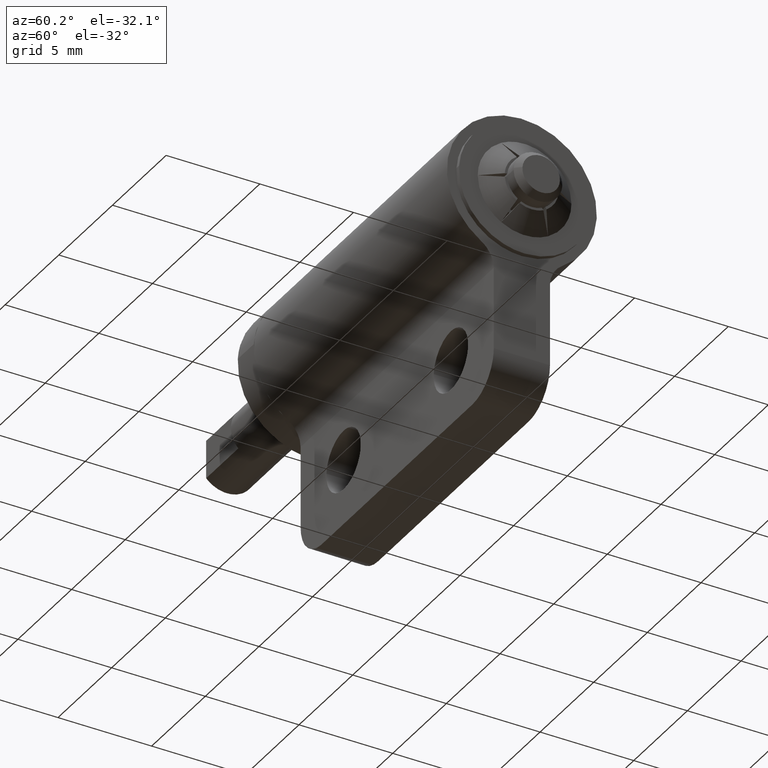
[diagram: clean part render]
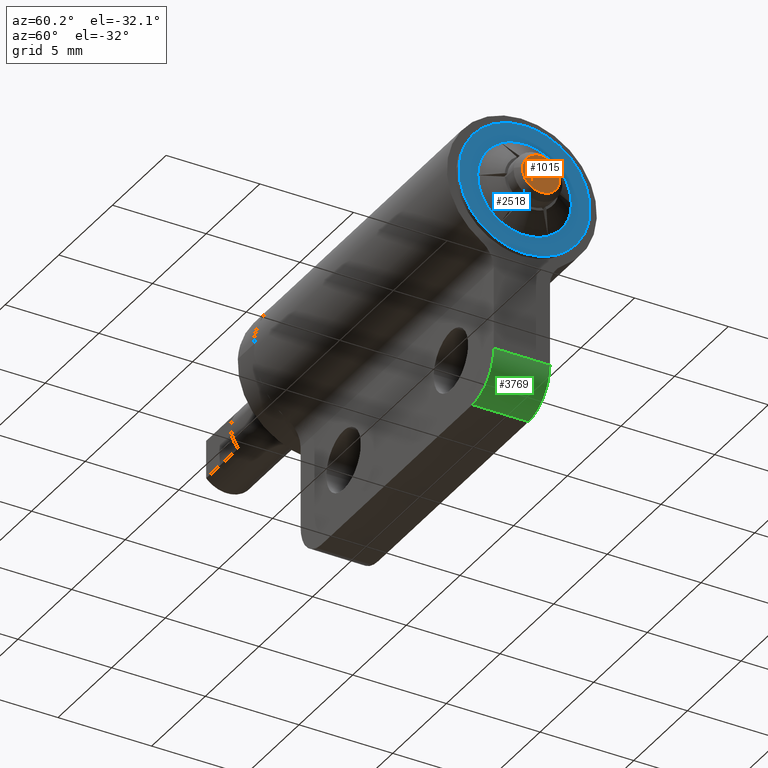
[diagram: same view with three faces highlighted in distinct colors, each labeled with its STEP entity id]
A machine part, auxiliary view with three faces highlighted in distinct colors.
Their STEP definitions:

[orange] entity #1015 — the highlighted face is a freeform B-spline surface patch.
#279=CARTESIAN_POINT('',(-26.299999999998139,0.996917333733859,0.078459095742352));
#280=VERTEX_POINT('',#279);
#286=CARTESIAN_POINT('',(-26.300000000000001,0.0,1.0));
#287=VERTEX_POINT('',#286);
#288=CARTESIAN_POINT('',(-26.300000000000001,0.0,1.0));
#289=CARTESIAN_POINT('',(-26.300000000000004,0.924390491631493,1.0));
#290=CARTESIAN_POINT('',(-26.299999999998139,0.996917333733859,0.078459095742352));
#298=(BOUNDED_CURVE()B_SPLINE_CURVE(2,(#288,#289,#290),.UNSPECIFIED.,.F.,.U.)B_SPLINE_CURVE_WITH_KNOTS((3,3),(0.0,0.236331300627828),.UNSPECIFIED.)CURVE()GEOMETRIC_REPRESENTATION_ITEM()RATIONAL_B_SPLINE_CURVE((1.0,0.723120658610983,0.969723356161509))REPRESENTATION_ITEM(''));
#299=EDGE_CURVE('',#287,#280,#298,.T.);
#301=CARTESIAN_POINT('',(-26.299999999998139,-0.996917333733859,-0.078459095742352));
#302=VERTEX_POINT('',#301);
#303=CARTESIAN_POINT('',(-26.299999999998136,-0.996917333733859,-0.078459095742352));
#304=CARTESIAN_POINT('',(-26.299999999999997,-1.0,-0.039290107022097));
#305=CARTESIAN_POINT('',(-26.300000000000001,-1.0,0.0));
#306=CARTESIAN_POINT('',(-26.299999999999997,-1.0,1.0));
#307=CARTESIAN_POINT('',(-26.300000000000001,0.0,1.0));
#315=(BOUNDED_CURVE()B_SPLINE_CURVE(2,(#303,#304,#305,#306,#307),.UNSPECIFIED.,.F.,.U.)B_SPLINE_CURVE_WITH_KNOTS((3,2,3),(0.736331300627828,0.750000000000000,1.0),.UNSPECIFIED.)CURVE()GEOMETRIC_REPRESENTATION_ITEM()RATIONAL_B_SPLINE_CURVE((0.969723356161509,0.983986122575565,1.0,0.707106781186548,1.0))REPRESENTATION_ITEM(''));
#316=EDGE_CURVE('',#302,#287,#315,.T.);
#350=CARTESIAN_POINT('',(-26.300000000000001,0.0,-1.0));
#351=VERTEX_POINT('',#350);
#352=CARTESIAN_POINT('',(-26.300000000000001,0.0,-1.0));
#353=CARTESIAN_POINT('',(-26.300000000000001,-0.924390491631491,-1.0));
#354=CARTESIAN_POINT('',(-26.299999999998136,-0.996917333733859,-0.078459095742352));
#362=(BOUNDED_CURVE()B_SPLINE_CURVE(2,(#352,#353,#354),.UNSPECIFIED.,.F.,.U.)B_SPLINE_CURVE_WITH_KNOTS((3,3),(0.500000000000000,0.736331300627828),.UNSPECIFIED.)CURVE()GEOMETRIC_REPRESENTATION_ITEM()RATIONAL_B_SPLINE_CURVE((1.0,0.723120658610983,0.969723356161508))REPRESENTATION_ITEM(''));
#363=EDGE_CURVE('',#351,#302,#362,.T.);
#365=CARTESIAN_POINT('',(-26.299999999998139,0.996917333733859,0.078459095742352));
#366=CARTESIAN_POINT('',(-26.299999999999997,1.0,0.039290107022097));
#367=CARTESIAN_POINT('',(-26.300000000000001,1.0,0.0));
#368=CARTESIAN_POINT('',(-26.299999999999997,1.0,-1.0));
#369=CARTESIAN_POINT('',(-26.300000000000001,0.0,-1.0));
#377=(BOUNDED_CURVE()B_SPLINE_CURVE(2,(#365,#366,#367,#368,#369),.UNSPECIFIED.,.F.,.U.)B_SPLINE_CURVE_WITH_KNOTS((3,2,3),(0.236331300627828,0.250000000000000,0.500000000000000),.UNSPECIFIED.)CURVE()GEOMETRIC_REPRESENTATION_ITEM()RATIONAL_B_SPLINE_CURVE((0.969723356161509,0.983986122575565,1.0,0.707106781186548,1.0))REPRESENTATION_ITEM(''));
#378=EDGE_CURVE('',#280,#351,#377,.T.);
#1004=CARTESIAN_POINT('',(-26.300000000000001,-1.099594752726777,-1.099899996123612));
#1005=CARTESIAN_POINT('',(-26.300000000000001,-1.099594752726777,1.099900049767792));
#1006=CARTESIAN_POINT('',(-26.300000000000001,1.099594806370957,-1.099899996123612));
#1007=CARTESIAN_POINT('',(-26.300000000000001,1.099594806370957,1.099900049767792));
#1008=B_SPLINE_SURFACE_WITH_KNOTS('',1,1,((#1004,#1006),(#1005,#1007)),.UNSPECIFIED.,.F.,.F.,.U.,(2,2),(2,2),(0.0,2.199800045891404),(0.0,2.199189559097734),.UNSPECIFIED.);
#1009=ORIENTED_EDGE('',*,*,#299,.T.);
#1010=ORIENTED_EDGE('',*,*,#378,.T.);
#1011=ORIENTED_EDGE('',*,*,#363,.T.);
#1012=ORIENTED_EDGE('',*,*,#316,.T.);
#1013=EDGE_LOOP('',(#1009,#1010,#1011,#1012));
#1014=FACE_OUTER_BOUND('',#1013,.T.);
#1015=ADVANCED_FACE('',(#1014),#1008,.T.);

[blue] entity #2518 — the highlighted face is a freeform B-spline surface patch.
#1207=CARTESIAN_POINT('',(-24.750000000000000,3.475533342270486,0.413119821319244));
#1208=VERTEX_POINT('',#1207);
#1209=CARTESIAN_POINT('',(-24.750000000000000,0.0,-3.500000000000100));
#1210=VERTEX_POINT('',#1209);
#1211=CARTESIAN_POINT('',(-24.750000000000000,3.475533342270485,0.413119821319244));
#1212=CARTESIAN_POINT('',(-24.750000000000007,3.500000000000100,0.207284418802486));
#1213=CARTESIAN_POINT('',(-24.750000000000000,3.500000000000100,0.0));
#1214=CARTESIAN_POINT('',(-24.749999999999996,3.500000000000100,-3.500000000000100));
#1215=CARTESIAN_POINT('',(-24.750000000000000,0.0,-3.500000000000100));
#1223=(BOUNDED_CURVE()B_SPLINE_CURVE(2,(#1211,#1212,#1213,#1214,#1215),.UNSPECIFIED.,.F.,.U.)B_SPLINE_CURVE_WITH_KNOTS((3,2,3),(0.229562473513643,0.250000000000000,0.500000000000000),.UNSPECIFIED.)CURVE()GEOMETRIC_REPRESENTATION_ITEM()RATIONAL_B_SPLINE_CURVE((0.956026754183963,0.976055948331303,1.0,0.707106781186548,1.0))REPRESENTATION_ITEM(''));
#1224=EDGE_CURVE('',#1208,#1210,#1223,.T.);
#1265=CARTESIAN_POINT('',(-24.750000000000050,-3.493471854062363,-0.213668914149493));
#1266=VERTEX_POINT('',#1265);
#1272=CARTESIAN_POINT('',(-24.750000000000000,0.0,-3.500000000000100));
#1273=CARTESIAN_POINT('',(-24.750000000000000,-3.292473073941206,-3.500000000000101));
#1274=CARTESIAN_POINT('',(-24.750000000000046,-3.493471854062363,-0.213668914149493));
#1282=(BOUNDED_CURVE()B_SPLINE_CURVE(2,(#1272,#1273,#1274),.UNSPECIFIED.,.F.,.U.)B_SPLINE_CURVE_WITH_KNOTS((3,3),(0.500000000000000,0.739333058478028),.UNSPECIFIED.)CURVE()GEOMETRIC_REPRESENTATION_ITEM()RATIONAL_B_SPLINE_CURVE((1.0,0.719603880535608,0.976072247925485))REPRESENTATION_ITEM(''));
#1283=EDGE_CURVE('',#1210,#1266,#1282,.T.);
#1306=CARTESIAN_POINT('',(-24.750000000000000,0.0,3.500000000000100));
#1307=VERTEX_POINT('',#1306);
#1308=CARTESIAN_POINT('',(-24.750000000000000,0.0,3.500000000000100));
#1309=CARTESIAN_POINT('',(-24.749999999999993,3.108610840792809,3.500000000000101));
#1310=CARTESIAN_POINT('',(-24.750000000000007,3.475533342270485,0.413119821319244));
#1318=(BOUNDED_CURVE()B_SPLINE_CURVE(2,(#1308,#1309,#1310),.UNSPECIFIED.,.F.,.U.)B_SPLINE_CURVE_WITH_KNOTS((3,3),(0.0,0.229562473513643),.UNSPECIFIED.)CURVE()GEOMETRIC_REPRESENTATION_ITEM()RATIONAL_B_SPLINE_CURVE((1.0,0.731050832855245,0.956026754183963))REPRESENTATION_ITEM(''));
#1319=EDGE_CURVE('',#1307,#1208,#1318,.T.);
#1321=CARTESIAN_POINT('',(-24.750000000000043,-3.493471854062363,-0.213668914149493));
#1322=CARTESIAN_POINT('',(-24.750000000000000,-3.500000000000100,-0.106933694590952));
#1323=CARTESIAN_POINT('',(-24.750000000000000,-3.500000000000100,0.0));
#1324=CARTESIAN_POINT('',(-24.749999999999996,-3.500000000000100,3.500000000000100));
#1325=CARTESIAN_POINT('',(-24.750000000000000,0.0,3.500000000000100));
#1333=(BOUNDED_CURVE()B_SPLINE_CURVE(2,(#1321,#1322,#1323,#1324,#1325),.UNSPECIFIED.,.F.,.U.)B_SPLINE_CURVE_WITH_KNOTS((3,2,3),(0.739333058478029,0.750000000000000,1.0),.UNSPECIFIED.)CURVE()GEOMETRIC_REPRESENTATION_ITEM()RATIONAL_B_SPLINE_CURVE((0.976072247925486,0.987502900650940,1.0,0.707106781186548,1.0))REPRESENTATION_ITEM(''));
#1334=EDGE_CURVE('',#1266,#1307,#1333,.T.);
#1378=CARTESIAN_POINT('',(-24.750000000000000,1.250000000000000,2.165063509461205));
#1379=VERTEX_POINT('',#1378);
#1521=CARTESIAN_POINT('',(-24.750000000000000,-1.250000000000042,2.165063509461205));
#1522=VERTEX_POINT('',#1521);
#1680=CARTESIAN_POINT('',(-24.750000000000000,-2.500000000000000,4.592274E-016));
#1681=VERTEX_POINT('',#1680);
#1839=CARTESIAN_POINT('',(-24.750000000000000,-1.249999999999914,-2.165063509461090));
#1840=VERTEX_POINT('',#1839);
#1998=CARTESIAN_POINT('',(-24.750000000000000,1.250000000000070,-2.165063509461090));
#1999=VERTEX_POINT('',#1998);
#2157=CARTESIAN_POINT('',(-24.750000000000000,2.500000000000000,1.984927E-013));
#2158=VERTEX_POINT('',#2157);
#2422=CARTESIAN_POINT('',(-24.750000000000000,-1.250000000000036,2.165063509461191));
#2423=CARTESIAN_POINT('',(-24.750000000000004,-2.233456E-014,2.886751345948220));
#2424=CARTESIAN_POINT('',(-24.750000000000000,1.250000000000002,2.165063509461211));
#2432=(BOUNDED_CURVE()B_SPLINE_CURVE(2,(#2422,#2423,#2424),.UNSPECIFIED.,.F.,.U.)CURVE()GEOMETRIC_REPRESENTATION_ITEM()QUASI_UNIFORM_CURVE()RATIONAL_B_SPLINE_CURVE((1.0,0.866025403784446,1.0))REPRESENTATION_ITEM(''));
#2433=EDGE_CURVE('',#1522,#1379,#2432,.T.);
#2439=CARTESIAN_POINT('',(-24.750000000000000,-3.849564799543704,3.849649986432752));
#2440=CARTESIAN_POINT('',(-24.750000000000000,-3.849564799543704,-3.849650174187383));
#2441=CARTESIAN_POINT('',(-24.750000000000000,3.849586328741395,3.849649986432752));
#2442=CARTESIAN_POINT('',(-24.750000000000000,3.849586328741395,-3.849650174187383));
#2443=B_SPLINE_SURFACE_WITH_KNOTS('',1,1,((#2439,#2441),(#2440,#2442)),.UNSPECIFIED.,.F.,.F.,.U.,(2,2),(2,2),(0.0,7.699300160620135),(0.0,7.699151128285099),.UNSPECIFIED.);
#2444=ORIENTED_EDGE('',*,*,#1319,.T.);
#2445=ORIENTED_EDGE('',*,*,#1224,.T.);
#2446=ORIENTED_EDGE('',*,*,#1283,.T.);
#2447=ORIENTED_EDGE('',*,*,#1334,.T.);
#2448=EDGE_LOOP('',(#2444,#2445,#2446,#2447));
#2449=FACE_OUTER_BOUND('',#2448,.T.);
#2450=CARTESIAN_POINT('',(-24.750000000000000,1.250000000000003,2.165063509461211));
#2451=CARTESIAN_POINT('',(-24.749999999999993,2.500000000000100,1.443375672974159));
#2452=CARTESIAN_POINT('',(-24.750000000000000,2.500000000000000,1.984927E-013));
#2460=(BOUNDED_CURVE()B_SPLINE_CURVE(2,(#2450,#2451,#2452),.UNSPECIFIED.,.F.,.U.)CURVE()GEOMETRIC_REPRESENTATION_ITEM()QUASI_UNIFORM_CURVE()RATIONAL_B_SPLINE_CURVE((1.0,0.866025403784433,1.0))REPRESENTATION_ITEM(''));
#2461=EDGE_CURVE('',#1379,#2158,#2460,.T.);
#2462=ORIENTED_EDGE('',*,*,#2461,.F.);
#2463=ORIENTED_EDGE('',*,*,#2433,.F.);
#2464=CARTESIAN_POINT('',(-24.750000000000000,-2.500000000000000,4.592274E-016));
#2465=CARTESIAN_POINT('',(-24.749999999999996,-2.500000000000100,1.443375672974133));
#2466=CARTESIAN_POINT('',(-24.750000000000000,-1.250000000000036,2.165063509461191));
#2474=(BOUNDED_CURVE()B_SPLINE_CURVE(2,(#2464,#2465,#2466),.UNSPECIFIED.,.F.,.U.)CURVE()GEOMETRIC_REPRESENTATION_ITEM()QUASI_UNIFORM_CURVE()RATIONAL_B_SPLINE_CURVE((1.0,0.866025403784437,1.0))REPRESENTATION_ITEM(''));
#2475=EDGE_CURVE('',#1681,#1522,#2474,.T.);
#2476=ORIENTED_EDGE('',*,*,#2475,.F.);
#2477=CARTESIAN_POINT('',(-24.750000000000000,-1.249999999999914,-2.165063509461090));
#2478=CARTESIAN_POINT('',(-24.750000000000004,-2.500000000000100,-1.443375672974170));
#2479=CARTESIAN_POINT('',(-24.750000000000000,-2.500000000000000,4.592274E-016));
#2487=(BOUNDED_CURVE()B_SPLINE_CURVE(2,(#2477,#2478,#2479),.UNSPECIFIED.,.F.,.U.)CURVE()GEOMETRIC_REPRESENTATION_ITEM()QUASI_UNIFORM_CURVE()RATIONAL_B_SPLINE_CURVE((1.0,0.866025403784431,1.0))REPRESENTATION_ITEM(''));
#2488=EDGE_CURVE('',#1840,#1681,#2487,.T.);
#2489=ORIENTED_EDGE('',*,*,#2488,.F.);
#2490=CARTESIAN_POINT('',(-24.750000000000000,1.250000000000106,-2.165063509461151));
#2491=CARTESIAN_POINT('',(-24.750000000000004,7.849624E-014,-2.886751345948242));
#2492=CARTESIAN_POINT('',(-24.750000000000000,-1.249999999999914,-2.165063509461090));
#2500=(BOUNDED_CURVE()B_SPLINE_CURVE(2,(#2490,#2491,#2492),.UNSPECIFIED.,.F.,.U.)CURVE()GEOMETRIC_REPRESENTATION_ITEM()QUASI_UNIFORM_CURVE()RATIONAL_B_SPLINE_CURVE((1.0,0.866025403784439,1.0))REPRESENTATION_ITEM(''));
#2501=EDGE_CURVE('',#1999,#1840,#2500,.T.);
#2502=ORIENTED_EDGE('',*,*,#2501,.F.);
#2503=CARTESIAN_POINT('',(-24.750000000000000,2.500000000000000,1.984927E-013));
#2504=CARTESIAN_POINT('',(-24.749999999999993,2.500000000000100,-1.443375672974079));
#2505=CARTESIAN_POINT('',(-24.750000000000000,1.250000000000106,-2.165063509461151));
#2513=(BOUNDED_CURVE()B_SPLINE_CURVE(2,(#2503,#2504,#2505),.UNSPECIFIED.,.F.,.U.)CURVE()GEOMETRIC_REPRESENTATION_ITEM()QUASI_UNIFORM_CURVE()RATIONAL_B_SPLINE_CURVE((1.0,0.866025403784445,1.0))REPRESENTATION_ITEM(''));
#2514=EDGE_CURVE('',#2158,#1999,#2513,.T.);
#2515=ORIENTED_EDGE('',*,*,#2514,.F.);
#2516=EDGE_LOOP('',(#2462,#2463,#2476,#2489,#2502,#2515));
#2517=FACE_BOUND('',#2516,.T.);
#2518=ADVANCED_FACE('',(#2449,#2517),#2443,.F.);

[green] entity #3769 — the highlighted face is a freeform B-spline surface patch.
#3709=CARTESIAN_POINT('',(-24.499923846128340,1.575000000000000,8.982546929054674));
#3710=CARTESIAN_POINT('',(-24.499923846128340,-1.576874999999986,8.982546929054674));
#3711=CARTESIAN_POINT('',(-24.518639973359093,1.575000000000001,11.127202684074931));
#3712=CARTESIAN_POINT('',(-24.518639973359093,-1.576874999999986,11.127202684074931));
#3713=CARTESIAN_POINT('',(-22.377902920930289,1.575000000000000,10.996269596895161));
#3714=CARTESIAN_POINT('',(-22.377902920930289,-1.576874999999986,10.996269596895161));
#3722=(BOUNDED_SURFACE()B_SPLINE_SURFACE(1,2,((#3709,#3711,#3713),(#3710,#3712,#3714)),.UNSPECIFIED.,.F.,.F.,.U.)B_SPLINE_SURFACE_WITH_KNOTS((2,2),(3,3),(0.0,3.151874999999986),(0.0,3.478498999687473),.UNSPECIFIED.)GEOMETRIC_REPRESENTATION_ITEM()RATIONAL_B_SPLINE_SURFACE(((1.0,0.681998360062499,1.0),(1.0,0.681998360062499,1.0)))REPRESENTATION_ITEM('')SURFACE());
#3723=CARTESIAN_POINT('',(-22.500000000000000,-1.499999999999986,11.000000000051420));
#3724=VERTEX_POINT('',#3723);
#3725=CARTESIAN_POINT('',(-24.500000000000000,-1.499999999999986,9.000000000051420));
#3726=VERTEX_POINT('',#3725);
#3727=CARTESIAN_POINT('',(-22.500000000000000,-1.499999999999986,11.000000000051420));
#3728=CARTESIAN_POINT('',(-24.500000000000004,-1.499999999999985,11.000000000051420));
#3729=CARTESIAN_POINT('',(-24.500000000000000,-1.499999999999986,9.000000000051420));
#3737=(BOUNDED_CURVE()B_SPLINE_CURVE(2,(#3727,#3728,#3729),.UNSPECIFIED.,.F.,.U.)CURVE()GEOMETRIC_REPRESENTATION_ITEM()QUASI_UNIFORM_CURVE()RATIONAL_B_SPLINE_CURVE((1.0,0.707106781186548,1.0))REPRESENTATION_ITEM(''));
#3738=EDGE_CURVE('',#3724,#3726,#3737,.T.);
#3739=ORIENTED_EDGE('',*,*,#3738,.F.);
#3740=CARTESIAN_POINT('',(-22.500000000000000,1.500000000000000,11.000000000051420));
#3741=VERTEX_POINT('',#3740);
#3742=CARTESIAN_POINT('',(-22.500000000000000,1.500000000000000,11.000000000051420));
#3743=CARTESIAN_POINT('',(-22.500000000000000,-1.499999999999986,11.000000000051420));
#3744=QUASI_UNIFORM_CURVE('',1,(#3742,#3743),.UNSPECIFIED.,.F.,.U.);
#3745=EDGE_CURVE('',#3741,#3724,#3744,.T.);
#3746=ORIENTED_EDGE('',*,*,#3745,.F.);
#3747=CARTESIAN_POINT('',(-24.500000000000000,1.500000000000000,9.000000000051420));
#3748=VERTEX_POINT('',#3747);
#3749=CARTESIAN_POINT('',(-24.500000000000000,1.500000000000000,9.000000000051420));
#3750=CARTESIAN_POINT('',(-24.500000000000004,1.500000000000000,11.000000000051420));
#3751=CARTESIAN_POINT('',(-22.500000000000000,1.500000000000000,11.000000000051420));
#3759=(BOUNDED_CURVE()B_SPLINE_CURVE(2,(#3749,#3750,#3751),.UNSPECIFIED.,.F.,.U.)CURVE()GEOMETRIC_REPRESENTATION_ITEM()QUASI_UNIFORM_CURVE()RATIONAL_B_SPLINE_CURVE((1.0,0.707106781186548,1.0))REPRESENTATION_ITEM(''));
#3760=EDGE_CURVE('',#3748,#3741,#3759,.T.);
#3761=ORIENTED_EDGE('',*,*,#3760,.F.);
#3762=CARTESIAN_POINT('',(-24.500000000000000,-1.499999999999986,9.000000000051420));
#3763=CARTESIAN_POINT('',(-24.500000000000000,1.500000000000000,9.000000000051420));
#3764=QUASI_UNIFORM_CURVE('',1,(#3762,#3763),.UNSPECIFIED.,.F.,.U.);
#3765=EDGE_CURVE('',#3726,#3748,#3764,.T.);
#3766=ORIENTED_EDGE('',*,*,#3765,.F.);
#3767=EDGE_LOOP('',(#3739,#3746,#3761,#3766));
#3768=FACE_OUTER_BOUND('',#3767,.T.);
#3769=ADVANCED_FACE('',(#3768),#3722,.T.);